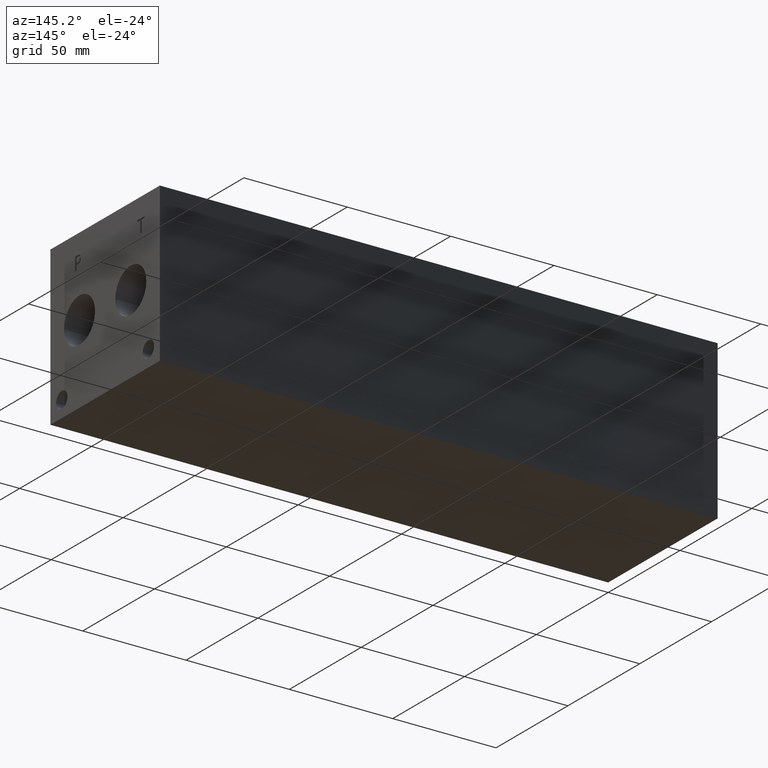
[diagram: clean part render]
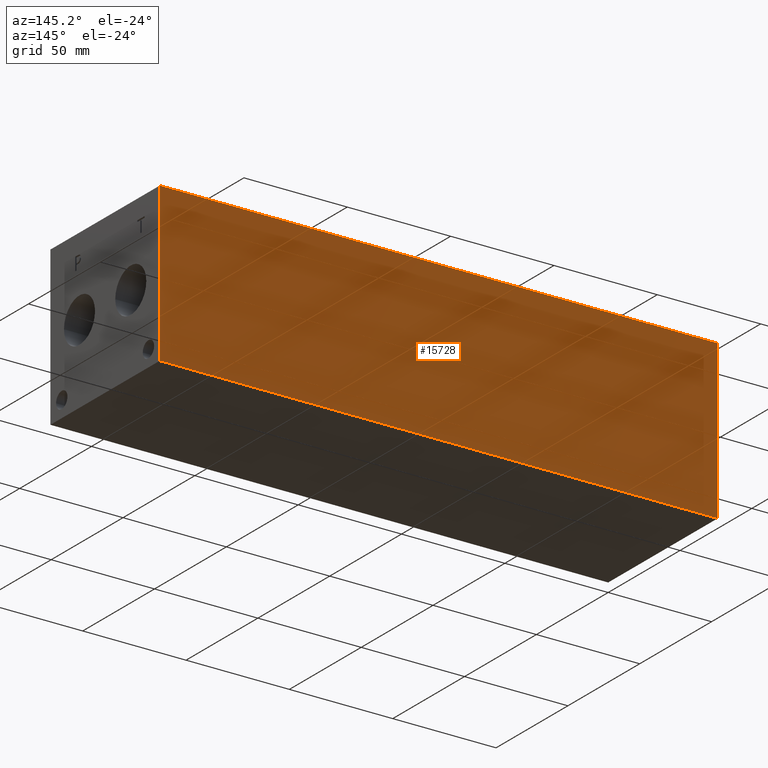
[diagram: same view with one face highlighted and labeled with its STEP entity id]
A machine part, auxiliary view. The second image highlights one B-rep face of the part: STEP entity #15728.
In plain terms, the highlighted planar face has unit normal (0, 1, 0).
Its self-contained STEP definition (entity closure, byte-faithful):
#1156=PLANE('',#16726);
#1966=FACE_OUTER_BOUND('',#2894,.T.);
#2894=EDGE_LOOP('',(#14035,#14036,#14037,#14038));
#3707=LINE('',#23735,#5102);
#3767=LINE('',#24008,#5162);
#4337=LINE('',#27175,#5732);
#4338=LINE('',#27176,#5733);
#5102=VECTOR('',#17980,10.);
#5162=VECTOR('',#18094,10.);
#5732=VECTOR('',#20086,10.);
#5733=VECTOR('',#20087,10.);
#6875=VERTEX_POINT('',#23732);
#6876=VERTEX_POINT('',#23734);
#6933=VERTEX_POINT('',#24004);
#6934=VERTEX_POINT('',#24006);
#8696=EDGE_CURVE('',#6875,#6876,#3707,.T.);
#8780=EDGE_CURVE('',#6933,#6934,#3767,.T.);
#9817=EDGE_CURVE('',#6875,#6933,#4337,.T.);
#9818=EDGE_CURVE('',#6876,#6934,#4338,.T.);
#14035=ORIENTED_EDGE('',*,*,#9817,.T.);
#14036=ORIENTED_EDGE('',*,*,#8780,.T.);
#14037=ORIENTED_EDGE('',*,*,#9818,.F.);
#14038=ORIENTED_EDGE('',*,*,#8696,.F.);
#15728=ADVANCED_FACE('',(#1966),#1156,.T.);
#16726=AXIS2_PLACEMENT_3D('',#27174,#20084,#20085);
#17980=DIRECTION('',(0.,0.,1.));
#18094=DIRECTION('',(0.,0.,1.));
#20084=DIRECTION('center_axis',(0.,1.,0.));
#20085=DIRECTION('ref_axis',(-1.,0.,0.));
#20086=DIRECTION('',(-1.,0.,0.));
#20087=DIRECTION('',(-1.,0.,0.));
#23732=CARTESIAN_POINT('',(269.875,76.2,0.));
#23734=CARTESIAN_POINT('',(269.875,76.2,76.2));
#23735=CARTESIAN_POINT('',(269.875,76.2,0.));
#24004=CARTESIAN_POINT('',(0.,76.2,0.));
#24006=CARTESIAN_POINT('',(0.,76.2,76.2));
#24008=CARTESIAN_POINT('',(0.,76.2,0.));
#27174=CARTESIAN_POINT('Origin',(269.875,76.2,0.));
#27175=CARTESIAN_POINT('',(269.875,76.2,0.));
#27176=CARTESIAN_POINT('',(269.875,76.2,76.2));